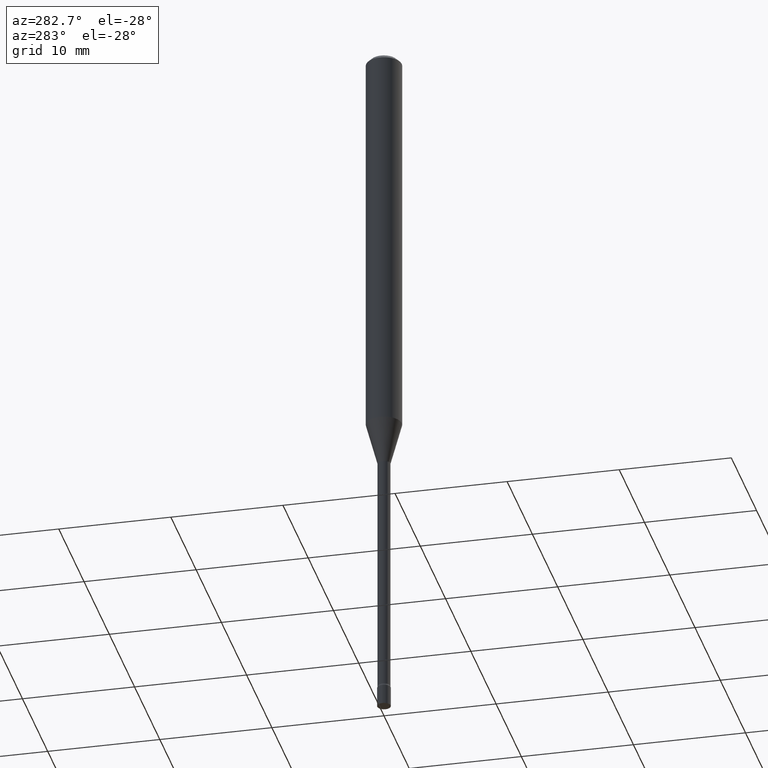
[diagram: clean part render]
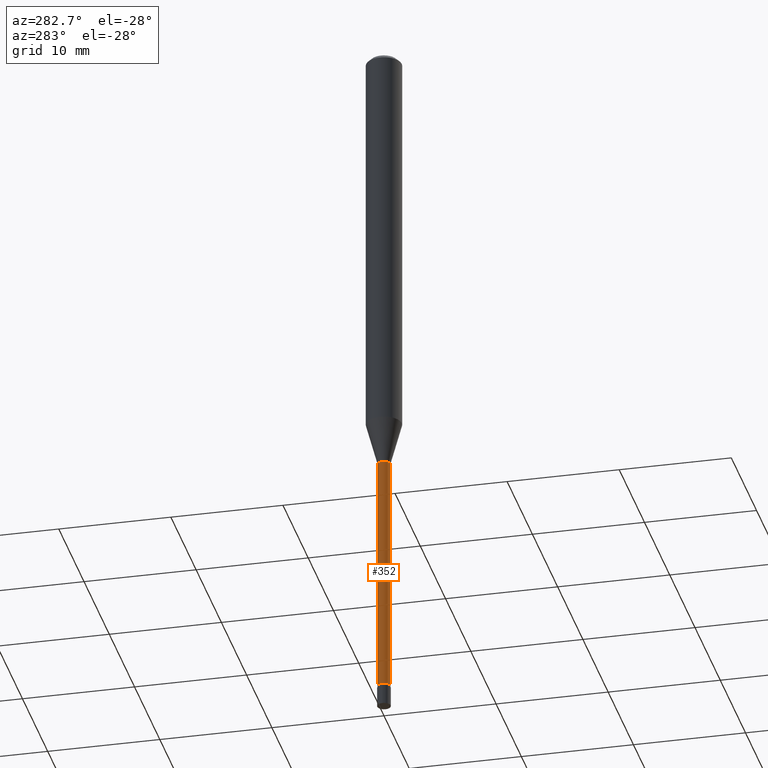
[diagram: same view with one face highlighted and labeled with its STEP entity id]
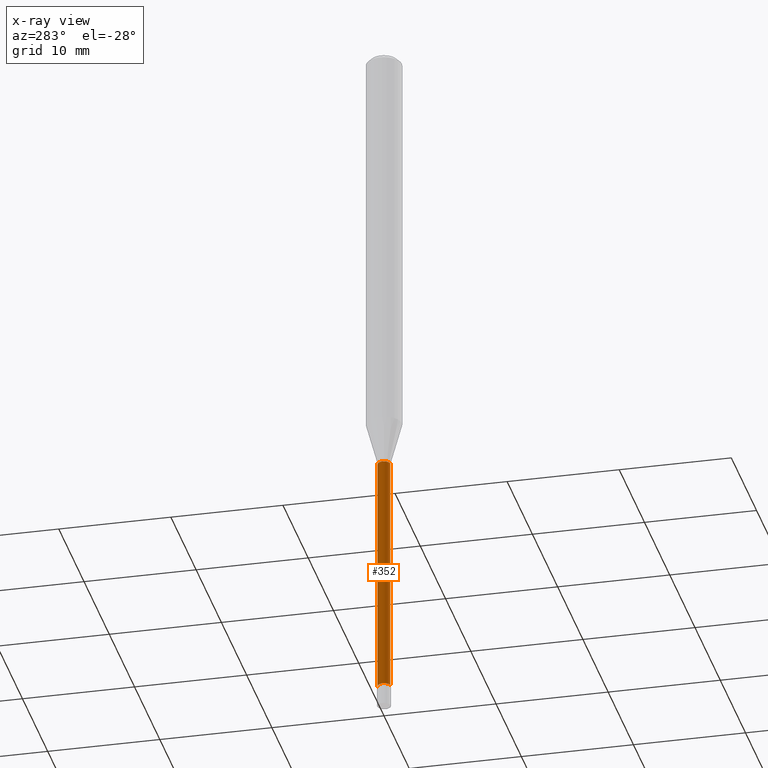
[diagram: x-ray of the same camera — body ghosted, the highlighted face saturated]
A machine part, auxiliary view. The second image highlights one B-rep face of the part: STEP entity #352.
The next image is the same camera in x-ray: the body ghosted, the highlighted face saturated — about 0% of this face is hidden behind the body in this view.
In plain terms, the highlighted cylindrical surface (edge-blend (fillet) strip) has radius 0.5613 mm, axis along (-0, 0, 1).
Its self-contained STEP definition (entity closure, byte-faithful):
#31 = DIRECTION ( 'NONE',  ( -2.445459864664737566E-29, 3.491494143609276784E-15, 1.000000000000000000 ) ) ;
#32 = ORIENTED_EDGE ( 'NONE', *, *, #404, .F. ) ;
#35 = CARTESIAN_POINT ( 'NONE',  ( 1.570299446030416621E-16, 0.02209999999999455109, -1.561974787463811243 ) ) ;
#43 = VECTOR ( 'NONE', #136, 39.37007874015748143 ) ;
#46 = DIRECTION ( 'NONE',  ( -2.445459864664737566E-29, 3.491494143609276784E-15, 1.000000000000000000 ) ) ;
#69 = EDGE_CURVE ( 'NONE', #268, #220, #362, .T. ) ;
#103 = CARTESIAN_POINT ( 'NONE',  ( 1.620037437533623579E-16, 0.02209999999999160900, -2.422672283192177645 ) ) ;
#110 = CYLINDRICAL_SURFACE ( 'NONE', #451, 0.02210000000000003628 ) ;
#112 = ORIENTED_EDGE ( 'NONE', *, *, #297, .F. ) ;
#114 = CIRCLE ( 'NONE', #402, 0.02210000000000007098 ) ;
#136 = DIRECTION ( 'NONE',  ( -2.445459864664737566E-29, 3.491494143609276390E-15, 1.000000000000000000 ) ) ;
#143 = EDGE_CURVE ( 'NONE', #149, #268, #114, .T. ) ;
#149 = VERTEX_POINT ( 'NONE', #103 ) ;
#182 = DIRECTION ( 'NONE',  ( -2.445459864664737566E-29, 3.491494143609276390E-15, 1.000000000000000000 ) ) ;
#187 = VECTOR ( 'NONE', #182, 39.37007874015748143 ) ;
#196 = DIRECTION ( 'NONE',  ( -2.445459864664737566E-29, 3.491494143609276784E-15, 1.000000000000000000 ) ) ;
#217 = CARTESIAN_POINT ( 'NONE',  ( 5.924547833782153992E-29, -8.458746088650004538E-15, -2.422672283192177645 ) ) ;
#220 = VERTEX_POINT ( 'NONE', #264 ) ;
#264 = CARTESIAN_POINT ( 'NONE',  ( -1.543234751768283257E-16, -0.02210000000000545903, -1.561974787463811243 ) ) ;
#266 = EDGE_LOOP ( 'NONE', ( #32, #469, #335, #112 ) ) ;
#268 = VERTEX_POINT ( 'NONE', #417 ) ;
#287 = CIRCLE ( 'NONE', #486, 0.02210000000000000506 ) ;
#297 = EDGE_CURVE ( 'NONE', #358, #220, #287, .T. ) ;
#312 = DIRECTION ( 'NONE',  ( -6.982962677686265922E-15, -1.000000000000000000, 3.491494143609276784E-15 ) ) ;
#335 = ORIENTED_EDGE ( 'NONE', *, *, #69, .T. ) ;
#348 = CARTESIAN_POINT ( 'NONE',  ( -1.543234751768667333E-16, -0.02210000000000003628, 7.716202057376514729E-17 ) ) ;
#352 = ADVANCED_FACE ( 'NONE', ( #472 ), #110, .T. ) ;
#358 = VERTEX_POINT ( 'NONE', #35 ) ;
#362 = LINE ( 'NONE', #348, #187 ) ;
#387 = CARTESIAN_POINT ( 'NONE',  ( 1.570299446029823742E-16, 0.02210000000000003628, -7.716202057376514729E-17 ) ) ;
#402 = AXIS2_PLACEMENT_3D ( 'NONE', #217, #46, #413 ) ;
#404 = EDGE_CURVE ( 'NONE', #149, #358, #498, .T. ) ;
#413 = DIRECTION ( 'NONE',  ( -6.982962677686265133E-15, -1.000000000000000000, 0.000000000000000000 ) ) ;
#417 = CARTESIAN_POINT ( 'NONE',  ( -1.543234751768077413E-16, -0.02210000000000852949, -2.422672283192177645 ) ) ;
#431 = CARTESIAN_POINT ( 'NONE',  ( 0.000000000000000000, 0.000000000000000000, 0.000000000000000000 ) ) ;
#451 = AXIS2_PLACEMENT_3D ( 'NONE', #431, #31, #312 ) ;
#469 = ORIENTED_EDGE ( 'NONE', *, *, #143, .T. ) ;
#472 = FACE_OUTER_BOUND ( 'NONE', #266, .T. ) ;
#480 = CARTESIAN_POINT ( 'NONE',  ( 3.819746652360984100E-29, -5.453625822895241987E-15, -1.561974787463811243 ) ) ;
#486 = AXIS2_PLACEMENT_3D ( 'NONE', #480, #196, #514 ) ;
#498 = LINE ( 'NONE', #387, #43 ) ;
#514 = DIRECTION ( 'NONE',  ( -6.982962677686265922E-15, -1.000000000000000000, 0.000000000000000000 ) ) ;